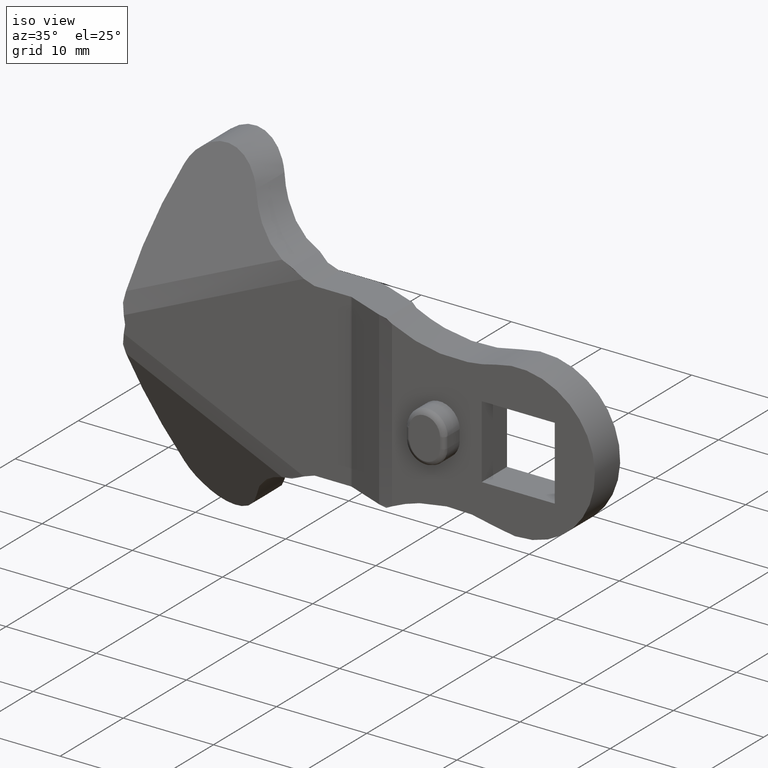
[diagram: clean part render]
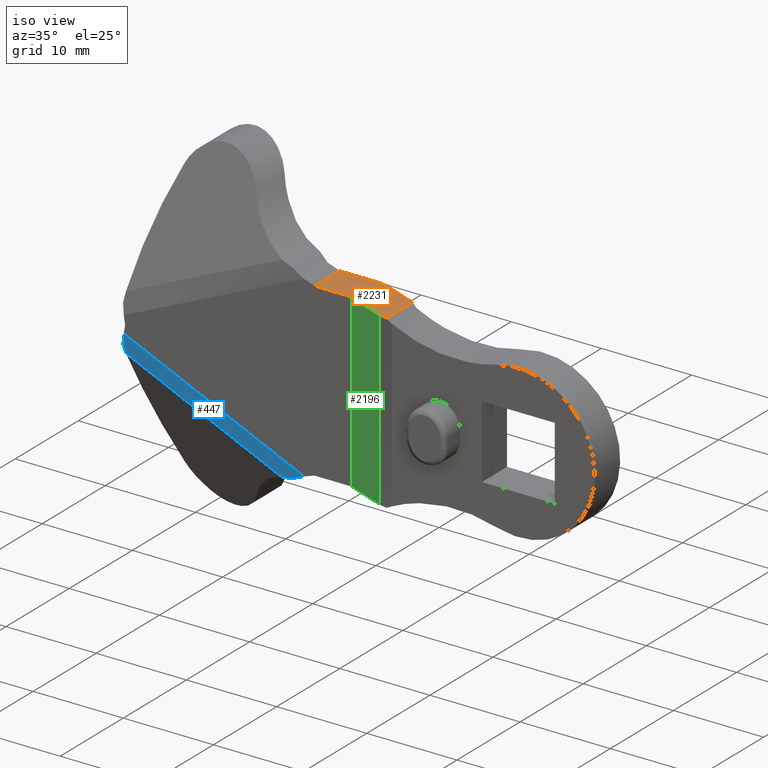
[diagram: same view with three faces highlighted in distinct colors, each labeled with its STEP entity id]
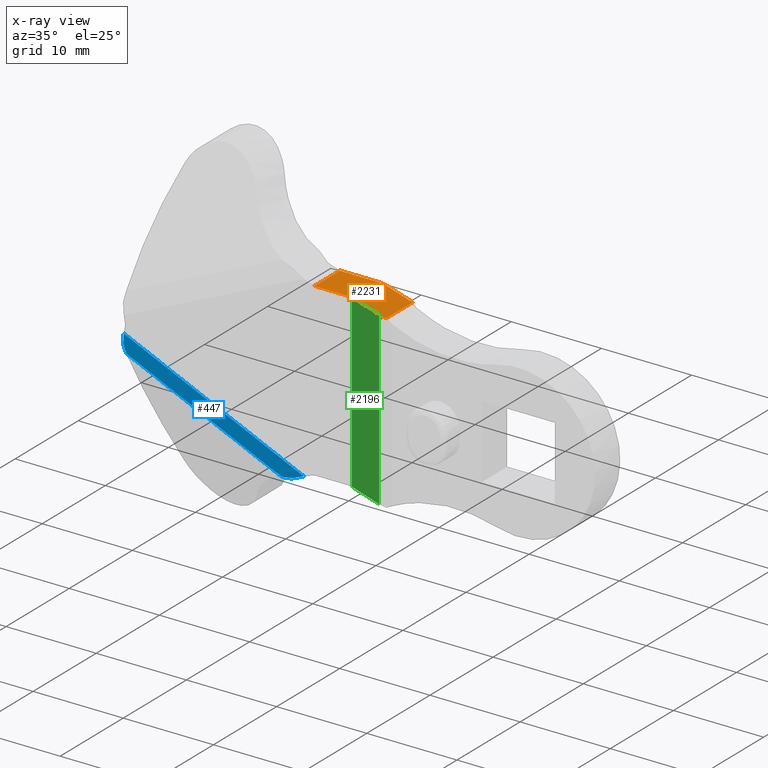
[diagram: x-ray of the same camera — body ghosted, the three highlighted faces saturated]
A machine part, iso view with three faces highlighted in distinct colors.
The next image is the same camera in x-ray (body ghosted, the three faces saturated) — at least one of them is partly hidden behind the body in this view.
Their STEP definitions:

[orange] entity #2231 — the highlighted face is a freeform B-spline surface patch.
#124=CARTESIAN_POINT('',(-19.815738810581301,-4.035191126322965,9.500000451225791));
#125=VERTEX_POINT('',#124);
#131=CARTESIAN_POINT('',(-20.000000945414651,-4.000000189989605,9.500000451225791));
#132=VERTEX_POINT('',#131);
#133=CARTESIAN_POINT('',(-20.000000945414651,-4.000000189989609,9.500000451225791));
#134=CARTESIAN_POINT('',(-19.904509442602119,-4.000000189989609,9.500000451225791));
#135=CARTESIAN_POINT('',(-19.815738810581301,-4.035191126322972,9.500000451225791));
#143=(BOUNDED_CURVE()B_SPLINE_CURVE(2,(#133,#134,#135),.UNSPECIFIED.,.F.,.U.)CURVE()GEOMETRIC_REPRESENTATION_ITEM()QUASI_UNIFORM_CURVE()RATIONAL_B_SPLINE_CURVE((1.0,0.982246946376846,1.0))REPRESENTATION_ITEM(''));
#144=EDGE_CURVE('',#132,#125,#143,.T.);
#186=CARTESIAN_POINT('',(-14.674170619676760,-5.949213069848859,9.500000451225770));
#187=VERTEX_POINT('',#186);
#195=CARTESIAN_POINT('',(-15.658360158914700,-5.683281762989360,9.500000451225791));
#196=VERTEX_POINT('',#195);
#197=CARTESIAN_POINT('',(-15.658360158914700,-5.683281762989362,9.500000451225791));
#198=CARTESIAN_POINT('',(-15.181424785678562,-5.872351075357715,9.500000451225791));
#199=CARTESIAN_POINT('',(-14.674170619676760,-5.949213069848835,9.500000451225791));
#207=(BOUNDED_CURVE()B_SPLINE_CURVE(2,(#197,#198,#199),.UNSPECIFIED.,.F.,.U.)CURVE()GEOMETRIC_REPRESENTATION_ITEM()QUASI_UNIFORM_CURVE()RATIONAL_B_SPLINE_CURVE((1.0,0.993563554547230,1.0))REPRESENTATION_ITEM(''));
#208=EDGE_CURVE('',#196,#187,#207,.T.);
#264=CARTESIAN_POINT('',(-20.000000583793451,0.0,9.500000451225791));
#265=VERTEX_POINT('',#264);
#271=CARTESIAN_POINT('',(-18.341641482482700,-0.316718382525524,9.500000451225791));
#272=VERTEX_POINT('',#271);
#273=CARTESIAN_POINT('',(-18.341641482482700,-0.316718382525532,9.500000451225791));
#274=CARTESIAN_POINT('',(-19.140577121023288,0.0,9.500000451225791));
#275=CARTESIAN_POINT('',(-20.000000583793451,0.0,9.500000451225791));
#283=(BOUNDED_CURVE()B_SPLINE_CURVE(2,(#273,#274,#275),.UNSPECIFIED.,.F.,.U.)CURVE()GEOMETRIC_REPRESENTATION_ITEM()QUASI_UNIFORM_CURVE()RATIONAL_B_SPLINE_CURVE((1.0,0.982246948892321,1.0))REPRESENTATION_ITEM(''));
#284=EDGE_CURVE('',#272,#265,#283,.T.);
#1457=CARTESIAN_POINT('',(-23.998182188334500,-4.000000189989585,9.500000451226081));
#1458=VERTEX_POINT('',#1457);
#1472=CARTESIAN_POINT('',(-23.998182188333249,-0.495720175705275,9.500000451225770));
#1473=VERTEX_POINT('',#1472);
#1474=CARTESIAN_POINT('',(-23.998182188333249,-0.495720175705275,9.500000451225770));
#1475=CARTESIAN_POINT('',(-23.998182188334500,-4.000000189989585,9.500000451226081));
#1476=QUASI_UNIFORM_CURVE('',1,(#1474,#1475),.UNSPECIFIED.,.F.,.U.);
#1477=EDGE_CURVE('',#1473,#1458,#1476,.T.);
#1537=CARTESIAN_POINT('',(-23.999333165310251,-0.495478834628852,9.500000451222290));
#1538=VERTEX_POINT('',#1537);
#1544=CARTESIAN_POINT('',(-23.999329191121799,0.0,9.500000451225791));
#1545=VERTEX_POINT('',#1544);
#1546=CARTESIAN_POINT('',(-23.999333165310251,-0.495478834628852,9.500000451222290));
#1547=CARTESIAN_POINT('',(-23.999329191121799,0.0,9.500000451225791));
#1548=QUASI_UNIFORM_CURVE('',1,(#1546,#1547),.UNSPECIFIED.,.F.,.U.);
#1549=EDGE_CURVE('',#1538,#1545,#1548,.T.);
#1874=CARTESIAN_POINT('',(-14.674170619676760,-1.770596997515350,9.500000451225780));
#1875=VERTEX_POINT('',#1874);
#1876=CARTESIAN_POINT('',(-14.674170619676760,-5.949213069848859,9.500000451225770));
#1877=CARTESIAN_POINT('',(-14.674170619676760,-1.770596997515350,9.500000451225780));
#1878=QUASI_UNIFORM_CURVE('',1,(#1876,#1877),.UNSPECIFIED.,.F.,.U.);
#1879=EDGE_CURVE('',#187,#1875,#1878,.T.);
#2182=CARTESIAN_POINT('',(-15.658360158914700,-5.683281762989360,9.500000451225791));
#2183=CARTESIAN_POINT('',(-19.815738810581301,-4.035191126322965,9.500000451225791));
#2184=QUASI_UNIFORM_CURVE('',1,(#2182,#2183),.UNSPECIFIED.,.F.,.U.);
#2185=EDGE_CURVE('',#196,#125,#2184,.T.);
#2197=CARTESIAN_POINT('',(-24.465124228549090,0.297163181308222,9.500000451225770));
#2198=CARTESIAN_POINT('',(-14.208378555956520,0.297163181308222,9.500000451225770));
#2199=CARTESIAN_POINT('',(-24.465124228549090,-6.246376410727410,9.500000451225770));
#2200=CARTESIAN_POINT('',(-14.208378555956520,-6.246376410727410,9.500000451225770));
#2201=B_SPLINE_SURFACE_WITH_KNOTS('',1,1,((#2197,#2199),(#2198,#2200)),.UNSPECIFIED.,.F.,.F.,.U.,(2,2),(2,2),(0.0,10.256745672592560),(0.0,6.543539592035631),.UNSPECIFIED.);
#2202=CARTESIAN_POINT('',(-18.341641482482700,-0.316718382525524,9.500000451225791));
#2203=CARTESIAN_POINT('',(-14.674170619676760,-1.770596997515350,9.500000451225780));
#2204=QUASI_UNIFORM_CURVE('',1,(#2202,#2203),.UNSPECIFIED.,.F.,.U.);
#2205=EDGE_CURVE('',#272,#1875,#2204,.T.);
#2206=ORIENTED_EDGE('',*,*,#2205,.F.);
#2207=ORIENTED_EDGE('',*,*,#284,.T.);
#2208=CARTESIAN_POINT('',(-23.999329191121799,0.0,9.500000451225791));
#2209=CARTESIAN_POINT('',(-20.000000583793451,0.0,9.500000451225791));
#2210=QUASI_UNIFORM_CURVE('',1,(#2208,#2209),.UNSPECIFIED.,.F.,.U.);
#2211=EDGE_CURVE('',#1545,#265,#2210,.T.);
#2212=ORIENTED_EDGE('',*,*,#2211,.F.);
#2213=ORIENTED_EDGE('',*,*,#1549,.F.);
#2214=CARTESIAN_POINT('',(-23.999333165310251,-0.495478834628852,9.500000451222290));
#2215=CARTESIAN_POINT('',(-23.998182188333249,-0.495720175705275,9.500000451225770));
#2216=QUASI_UNIFORM_CURVE('',1,(#2214,#2215),.UNSPECIFIED.,.F.,.U.);
#2217=EDGE_CURVE('',#1538,#1473,#2216,.T.);
#2218=ORIENTED_EDGE('',*,*,#2217,.T.);
#2219=ORIENTED_EDGE('',*,*,#1477,.T.);
#2220=CARTESIAN_POINT('',(-20.000000945414651,-4.000000189989605,9.500000451225791));
#2221=CARTESIAN_POINT('',(-23.998182188334500,-4.000000189989585,9.500000451226081));
#2222=QUASI_UNIFORM_CURVE('',1,(#2220,#2221),.UNSPECIFIED.,.F.,.U.);
#2223=EDGE_CURVE('',#132,#1458,#2222,.T.);
#2224=ORIENTED_EDGE('',*,*,#2223,.F.);
#2225=ORIENTED_EDGE('',*,*,#144,.T.);
#2226=ORIENTED_EDGE('',*,*,#2185,.F.);
#2227=ORIENTED_EDGE('',*,*,#208,.T.);
#2228=ORIENTED_EDGE('',*,*,#1879,.T.);
#2229=EDGE_LOOP('',(#2206,#2207,#2212,#2213,#2218,#2219,#2224,#2225,#2226,#2227,#2228));
#2230=FACE_OUTER_BOUND('',#2229,.T.);
#2231=ADVANCED_FACE('',(#2230),#2201,.F.);

[blue] entity #447 — the highlighted face is a freeform B-spline surface patch.
#371=CARTESIAN_POINT('',(-46.525036719932530,-3.459749714023135,-2.647225194538698));
#372=CARTESIAN_POINT('',(-25.544256486351863,-3.459749714023136,-12.082401327886000));
#373=CARTESIAN_POINT('',(-46.094402716883422,-4.026619458572291,-1.689634445686914));
#374=CARTESIAN_POINT('',(-25.113622483302759,-4.026619458572292,-11.124810579034222));
#375=CARTESIAN_POINT('',(-45.605148209467927,-3.998774762254087,-0.601690653933681));
#376=CARTESIAN_POINT('',(-24.624367975887250,-3.998774762254090,-10.036866787280983));
#384=(BOUNDED_SURFACE()B_SPLINE_SURFACE(1,2,((#371,#373,#375),(#372,#374,#376)),.UNSPECIFIED.,.F.,.F.,.U.)B_SPLINE_SURFACE_WITH_KNOTS((2,2),(3,3),(0.0,23.004688389045739),(0.0,2.345899069765854),.UNSPECIFIED.)GEOMETRIC_REPRESENTATION_ITEM()RATIONAL_B_SPLINE_SURFACE(((0.997159786940830,0.962791708985727,0.994968427579136),(0.997159786940830,0.962791708985727,0.994968427579136)))REPRESENTATION_ITEM('')SURFACE());
#385=CARTESIAN_POINT('',(-25.179163760176500,-4.000000189989585,-9.902513038955160));
#386=VERTEX_POINT('',#385);
#387=CARTESIAN_POINT('',(-26.601474815793701,-3.840346068386680,-10.565516693901481));
#388=VERTEX_POINT('',#387);
#389=CARTESIAN_POINT('',(-25.179163760176500,-4.000000189989605,-9.902513038955171));
#390=CARTESIAN_POINT('',(-25.425377438749759,-4.000000189989603,-9.999766751558077));
#391=CARTESIAN_POINT('',(-25.667059573868030,-3.988057542787824,-10.103865933974591));
#392=CARTESIAN_POINT('',(-26.141233840243299,-3.936388909692878,-10.325088841725510));
#393=CARTESIAN_POINT('',(-26.373727864516990,-3.896693672019138,-10.442215910365841));
#394=CARTESIAN_POINT('',(-26.601474815793701,-3.840346068386680,-10.565516693901481));
#395=B_SPLINE_CURVE_WITH_KNOTS('',3,(#389,#390,#391,#392,#393,#394),.UNSPECIFIED.,.F.,.U.,(4,2,4),(0.0,0.500000000000000,1.0),.UNSPECIFIED.);
#396=EDGE_CURVE('',#386,#388,#395,.T.);
#397=ORIENTED_EDGE('',*,*,#396,.F.);
#398=CARTESIAN_POINT('',(-45.148972429854702,-4.000000189989605,-0.921976564621015));
#399=VERTEX_POINT('',#398);
#400=CARTESIAN_POINT('',(-45.148972429854702,-4.000000189989605,-0.921976564621015));
#401=CARTESIAN_POINT('',(-25.179163760176500,-4.000000189989585,-9.902513038955160));
#402=QUASI_UNIFORM_CURVE('',1,(#400,#401),.UNSPECIFIED.,.F.,.U.);
#403=EDGE_CURVE('',#399,#386,#402,.T.);
#404=ORIENTED_EDGE('',*,*,#403,.F.);
#405=CARTESIAN_POINT('',(-45.337636121082198,-3.852637138692215,-2.089482362715215));
#406=VERTEX_POINT('',#405);
#407=CARTESIAN_POINT('',(-45.337636121082198,-3.852637138692215,-2.089482362715215));
#408=CARTESIAN_POINT('',(-45.244874554718606,-4.000000175004796,-1.515446808416783));
#409=CARTESIAN_POINT('',(-45.148972429854702,-4.000000189989605,-0.921976564621015));
#417=(BOUNDED_CURVE()B_SPLINE_CURVE(2,(#407,#408,#409),.UNSPECIFIED.,.F.,.U.)CURVE()GEOMETRIC_REPRESENTATION_ITEM()QUASI_UNIFORM_CURVE()RATIONAL_B_SPLINE_CURVE((1.0,0.991779376124634,1.0))REPRESENTATION_ITEM(''));
#418=EDGE_CURVE('',#406,#399,#417,.T.);
#419=ORIENTED_EDGE('',*,*,#418,.F.);
#420=CARTESIAN_POINT('',(-45.242726933292097,-3.508459309364295,-3.122147072097275));
#421=VERTEX_POINT('',#420);
#422=CARTESIAN_POINT('',(-45.242726933292097,-3.508459309364295,-3.122147072097275));
#423=CARTESIAN_POINT('',(-45.277640556673518,-3.656078735051886,-2.789189803602479));
#424=CARTESIAN_POINT('',(-45.309561395284788,-3.770593504912073,-2.444923993962642));
#425=CARTESIAN_POINT('',(-45.337636121082198,-3.852637138692215,-2.089482362715215));
#426=QUASI_UNIFORM_CURVE('',3,(#422,#423,#424,#425),.UNSPECIFIED.,.F.,.U.);
#427=EDGE_CURVE('',#421,#406,#426,.T.);
#428=ORIENTED_EDGE('',*,*,#427,.F.);
#429=CARTESIAN_POINT('',(-27.954502872868549,-3.508459309347505,-10.896759704548121));
#430=VERTEX_POINT('',#429);
#431=CARTESIAN_POINT('',(-27.954502872868549,-3.508459309347505,-10.896759704548121));
#432=CARTESIAN_POINT('',(-45.242726933292097,-3.508459309364295,-3.122147072097275));
#433=QUASI_UNIFORM_CURVE('',1,(#431,#432),.UNSPECIFIED.,.F.,.U.);
#434=EDGE_CURVE('',#430,#421,#433,.T.);
#435=ORIENTED_EDGE('',*,*,#434,.F.);
#436=CARTESIAN_POINT('',(-26.601474815793701,-3.840346068386680,-10.565516693901481));
#437=CARTESIAN_POINT('',(-26.836083321543430,-3.804612244858574,-10.603156147024420));
#438=CARTESIAN_POINT('',(-27.066426354686399,-3.760749734430989,-10.650074288204159));
#439=CARTESIAN_POINT('',(-27.517756693517239,-3.651930051103695,-10.760990244382990));
#440=CARTESIAN_POINT('',(-27.738748206028969,-3.586997449344165,-10.824995494670860));
#441=CARTESIAN_POINT('',(-27.954502872868549,-3.508459309347505,-10.896759704548121));
#442=B_SPLINE_CURVE_WITH_KNOTS('',3,(#436,#437,#438,#439,#440,#441),.UNSPECIFIED.,.F.,.U.,(4,2,4),(0.0,0.500000000000000,1.0),.UNSPECIFIED.);
#443=EDGE_CURVE('',#388,#430,#442,.T.);
#444=ORIENTED_EDGE('',*,*,#443,.F.);
#445=EDGE_LOOP('',(#397,#404,#419,#428,#435,#444));
#446=FACE_OUTER_BOUND('',#445,.T.);
#447=ADVANCED_FACE('',(#446),#384,.T.);

[green] entity #2196 — the highlighted face is a freeform B-spline surface patch.
#107=CARTESIAN_POINT('',(-19.815738810581301,-4.035191126322965,-9.500000451225791));
#108=VERTEX_POINT('',#107);
#124=CARTESIAN_POINT('',(-19.815738810581301,-4.035191126322965,9.500000451225791));
#125=VERTEX_POINT('',#124);
#126=CARTESIAN_POINT('',(-19.815738810581301,-4.035191126322965,9.500000451225791));
#127=CARTESIAN_POINT('',(-19.815738810581301,-4.035191126322965,-9.500000451225791));
#128=QUASI_UNIFORM_CURVE('',1,(#126,#127),.UNSPECIFIED.,.F.,.U.);
#129=EDGE_CURVE('',#125,#108,#128,.T.);
#195=CARTESIAN_POINT('',(-15.658360158914700,-5.683281762989360,9.500000451225791));
#196=VERTEX_POINT('',#195);
#210=CARTESIAN_POINT('',(-15.658360158914700,-5.683281762989360,-9.500000451225791));
#211=VERTEX_POINT('',#210);
#212=CARTESIAN_POINT('',(-15.658360158914700,-5.683281762989360,-9.500000451225791));
#213=CARTESIAN_POINT('',(-15.658360158914700,-5.683281762989360,9.500000451225791));
#214=QUASI_UNIFORM_CURVE('',1,(#212,#213),.UNSPECIFIED.,.F.,.U.);
#215=EDGE_CURVE('',#211,#196,#214,.T.);
#2177=CARTESIAN_POINT('',(-15.450699352333819,-5.765603788381820,-10.449050034879379));
#2178=CARTESIAN_POINT('',(-20.023399654332049,-3.952869086195438,-10.449050034879379));
#2179=CARTESIAN_POINT('',(-15.450699352333819,-5.765603788381820,10.449049525259641));
#2180=CARTESIAN_POINT('',(-20.023399654332049,-3.952869086195437,10.449049525259641));
#2181=B_SPLINE_SURFACE_WITH_KNOTS('',1,1,((#2177,#2179),(#2178,#2180)),.UNSPECIFIED.,.F.,.F.,.U.,(2,2),(2,2),(0.0,4.918901823822623),(0.0,20.898099560139020),.UNSPECIFIED.);
#2182=CARTESIAN_POINT('',(-15.658360158914700,-5.683281762989360,9.500000451225791));
#2183=CARTESIAN_POINT('',(-19.815738810581301,-4.035191126322965,9.500000451225791));
#2184=QUASI_UNIFORM_CURVE('',1,(#2182,#2183),.UNSPECIFIED.,.F.,.U.);
#2185=EDGE_CURVE('',#196,#125,#2184,.T.);
#2186=ORIENTED_EDGE('',*,*,#2185,.T.);
#2187=ORIENTED_EDGE('',*,*,#129,.T.);
#2188=CARTESIAN_POINT('',(-15.658360158914700,-5.683281762989360,-9.500000451225791));
#2189=CARTESIAN_POINT('',(-19.815738810581301,-4.035191126322965,-9.500000451225791));
#2190=QUASI_UNIFORM_CURVE('',1,(#2188,#2189),.UNSPECIFIED.,.F.,.U.);
#2191=EDGE_CURVE('',#211,#108,#2190,.T.);
#2192=ORIENTED_EDGE('',*,*,#2191,.F.);
#2193=ORIENTED_EDGE('',*,*,#215,.T.);
#2194=EDGE_LOOP('',(#2186,#2187,#2192,#2193));
#2195=FACE_OUTER_BOUND('',#2194,.T.);
#2196=ADVANCED_FACE('',(#2195),#2181,.F.);